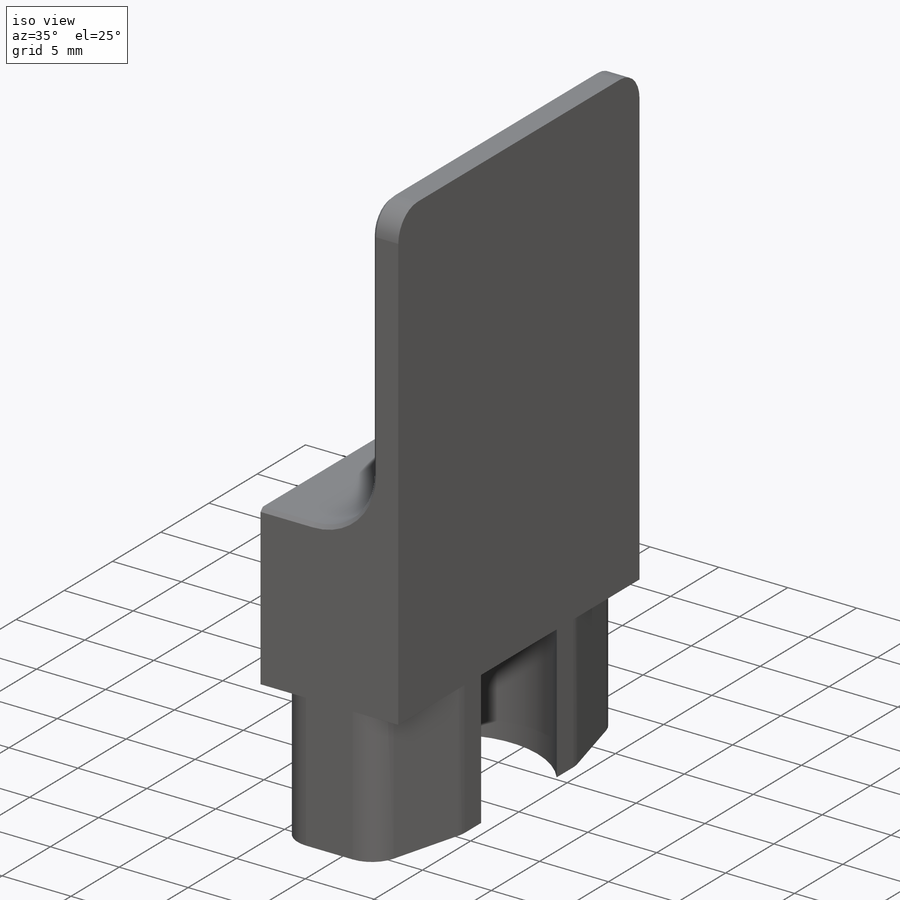
[diagram: iso view]
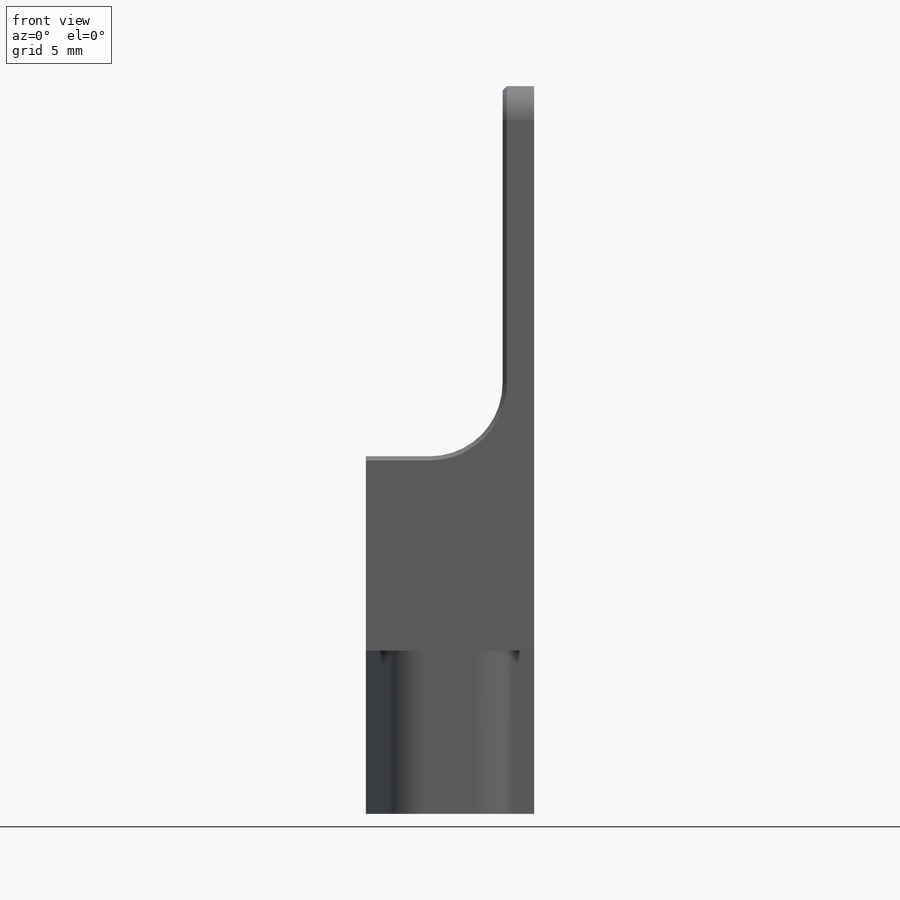
[diagram: front view]
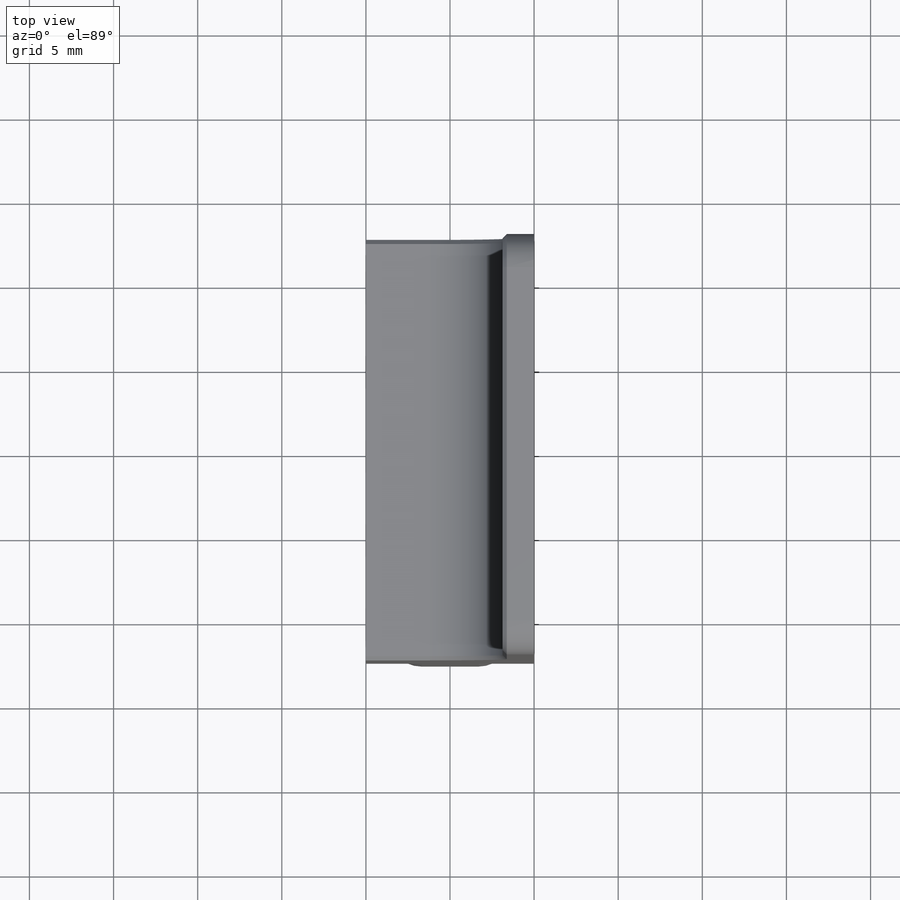
[diagram: top view]
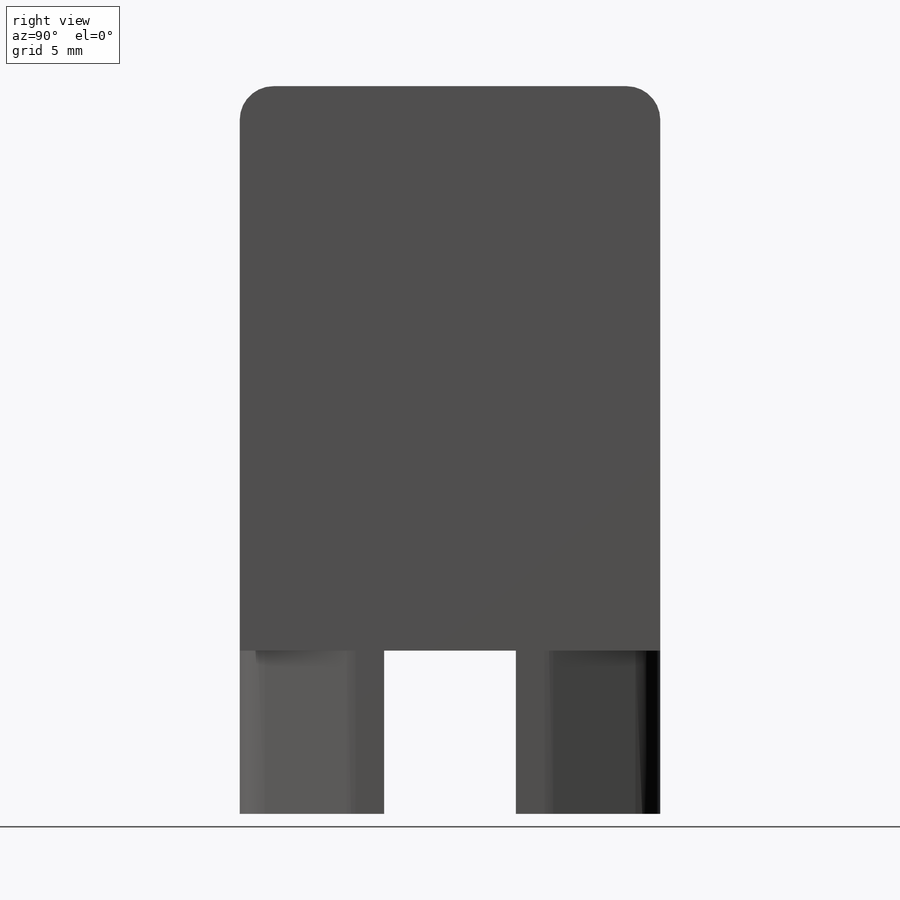
[diagram: right view]
SOLIDWORKS PART (.sldprt)
format: sldprt  version: not decoded by parser v0  size: 304,640 bytes
history: native  units: mm
features: sketch x4, cut_extrude x3, fillet x3, material x1, extrude x1, mirror x1, chamfer x1 (+11 scaffold rows collapsed)
feature tree (25):
  scaffold x11  (default folders/planes/origin — collapsed)
  material  "6061-T6 (SS)"
  sketch  "Sketch2"  dims[c1.D4=4.325mm c1.D3=12.7mm c1.D1=1.0mm c1.D2=1.0mm c2.D3=1.5mm c2.D1=22.0mm c2.D2=12.0mm c2.D5=1.875mm c2.D6=10.0mm c2.D7=~0.984375mm c2.D8=~0.984375mm c3.D2=22.23mm c3.D9=1.2mm c3.D7=3.0mm]
  extrude  "Boss-Extrude1"  Depth=25mm
  sketch  "Sketch3"  dims[D1=12.705mm D2=~7.685033mm]
  cut_extrude  "Cut-Extrude1"  [1 undecoded]
  fillet  "Fillet1"  Radius=2mm
  sketch  "Sketch6"  dims[c1.D1=~12.252047mm c2.D1=15.0deg c2.D2=1.0mm c2.D3=5.0mm c2.D4=5.0mm]
  cut_extrude  "Cut-Extrude2"  [1 undecoded]
  mirror  "Mirror1"
  fillet  "Fillet2"  Radius=2mm
  sketch  "Sketch7"  dims[D1=2.0mm]
  cut_extrude  "Cut-Extrude3"  Depth=2mm
  fillet  "Fillet3"  Radius=2mm
  chamfer  "Chamfer1"  Distance=0.25mm Angle=45deg
decode coverage: 10 of 13 modeling features carry decoded parameters
note: ~ marks probable driven/reference dimensions
note: 2 parameter values undecoded
note: suppression state not decoded; provenance and decode notes live in map.json
